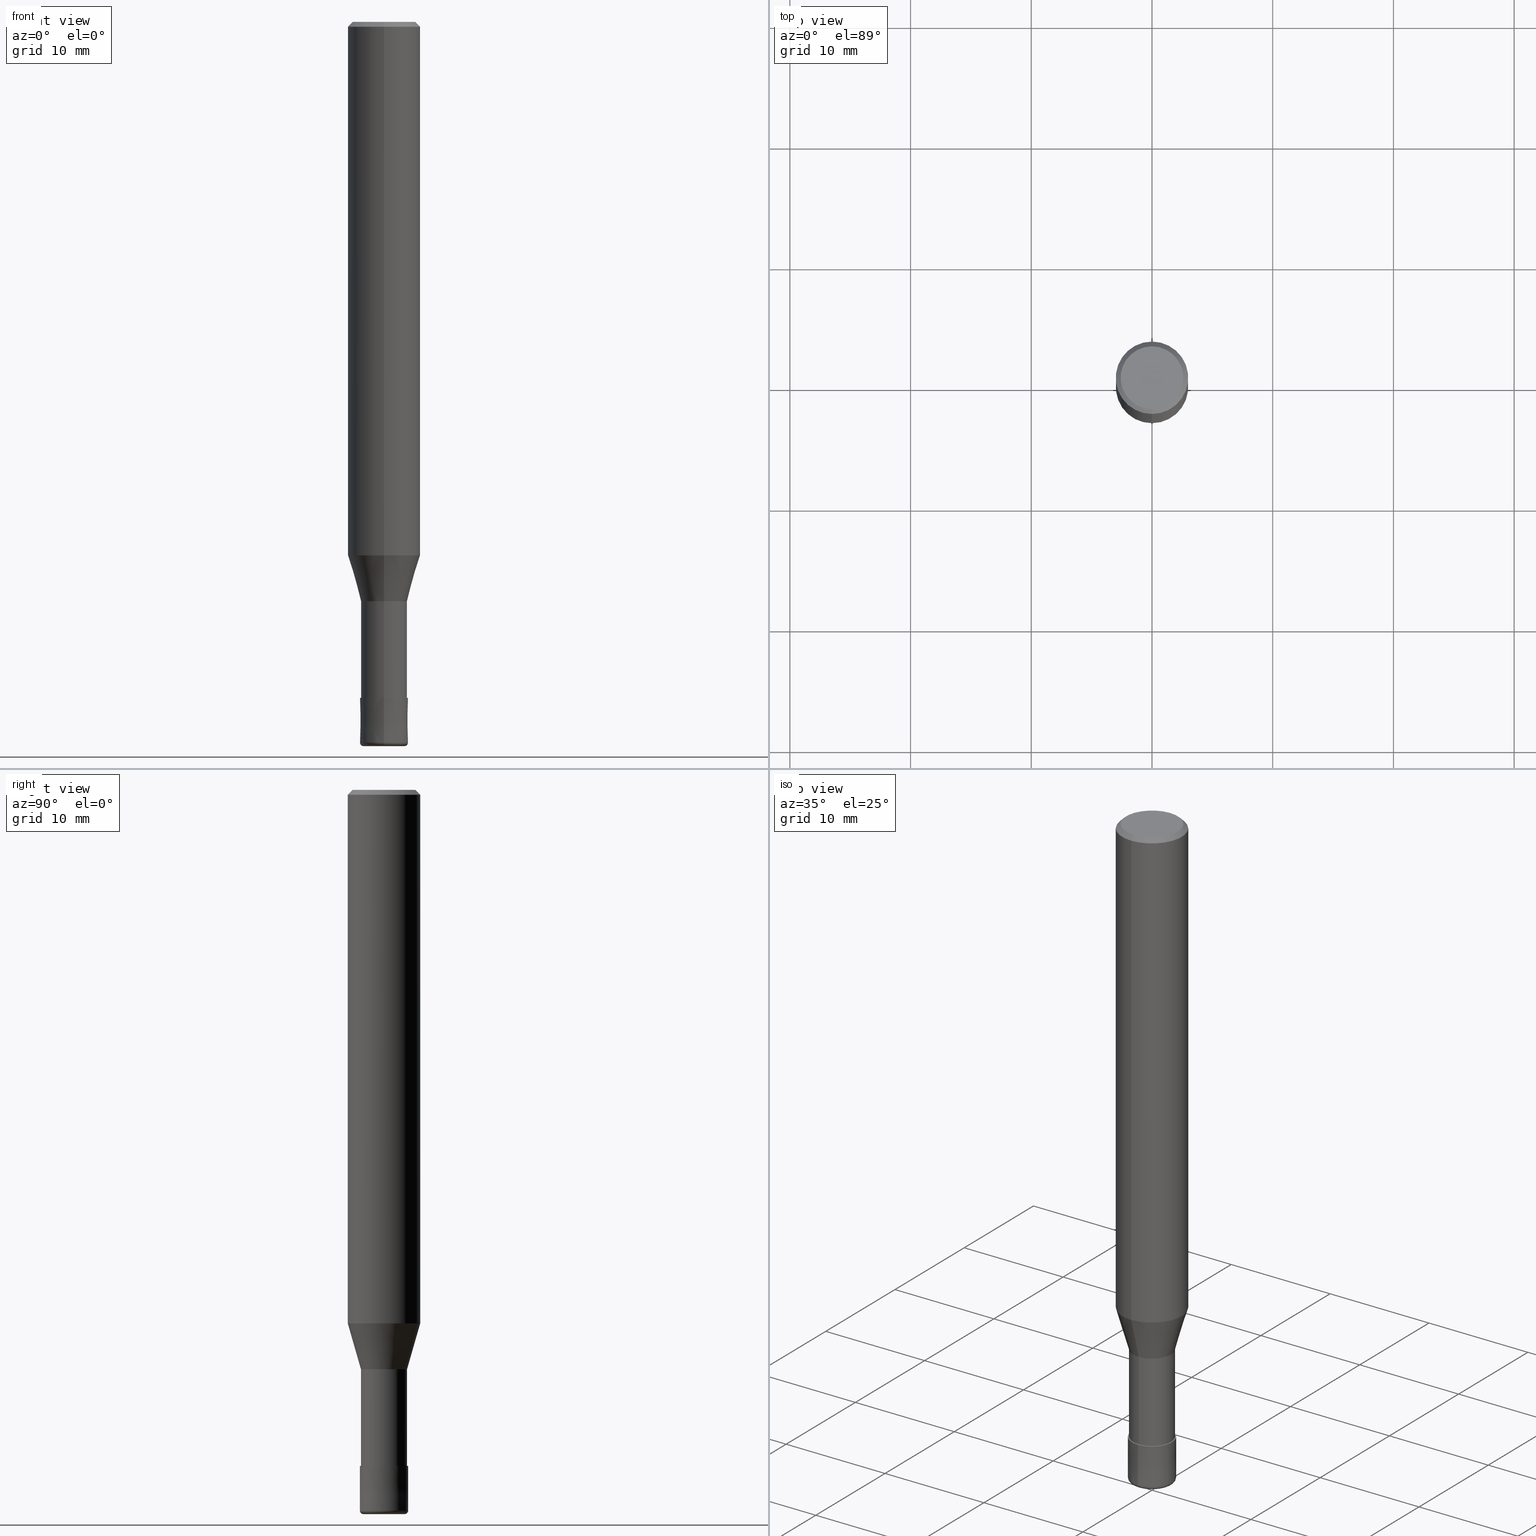
[diagram: canonical four-view strip — front | top / right | iso, engineering-drawing reading convention]
A machine part, canonical four-view strip (front | top / right | iso — engineering-drawing reading convention). The complete STEP part file that produces these views, byte-faithful:
ISO-10303-21;
HEADER;
FILE_DESCRIPTION(('no description'),'unknown implementation level');
FILE_NAME('CRRS4040-03-12-Huellk.stp','  ',('CIMSOURCE GmbH'),('CADClick - KiM GmbH - www.kimweb.de'),'unknown preprocess','ACIS','unknown authorization');
FILE_SCHEMA(('automotive_design'));
ENDSEC;
DATA;
#1=MECHANICAL_DESIGN_GEOMETRIC_PRESENTATION_REPRESENTATION(' ',(#14,#15,#16,#17,#18,#19,#20,#21,#22,#23,#24,#25,#26,#27,#28,#29,#30,#31,#32,#33,#34,#35,#36,#37,#38,#39,#40,#41,#42,#43,#44,#45,#46,#47,#48,#49,#50,#51,#52,#53,#54,#55,#56,#57,#58,#59,#60,#61,#62,#63,#64,#65,#66,#67,#68,#69,#70,#71,#72,#73,#74,#75,#76,#77,#78,#79,#80),#10);
#2=PRODUCT_DEFINITION_CONTEXT('',#81,'design');
#3=APPLICATION_PROTOCOL_DEFINITION('INTERNATIONAL STANDARD','automotive_design',1994,#81);
#4=PRODUCT_CATEGORY_RELATIONSHIP('NONE','NONE',#82,#83);
#5=SHAPE_DEFINITION_REPRESENTATION(#84,#85);
#6=PRODUCT_DEFINITION_CONTEXT('',#86,'design');
#7=APPLICATION_PROTOCOL_DEFINITION('INTERNATIONAL STANDARD','automotive_design',1994,#86);
#8=PRODUCT_CATEGORY_RELATIONSHIP('NONE','NONE',#87,#88);
#9=SHAPE_DEFINITION_REPRESENTATION(#89,#90);
#10= (GEOMETRIC_REPRESENTATION_CONTEXT(3)GLOBAL_UNCERTAINTY_ASSIGNED_CONTEXT((#93))GLOBAL_UNIT_ASSIGNED_CONTEXT((#95,#96,#97))REPRESENTATION_CONTEXT('NONE','WORKSPACE'));
#14=STYLED_ITEM('',(#99),#100);
#15=STYLED_ITEM('',(#101),#102);
#16=STYLED_ITEM('',(#103),#104);
#17=STYLED_ITEM('',(#105),#106);
#18=STYLED_ITEM('',(#107),#108);
#19=STYLED_ITEM('',(#109),#110);
#20=STYLED_ITEM('',(#111),#112);
#21=STYLED_ITEM('',(#113),#114);
#22=STYLED_ITEM('',(#115),#116);
#23=STYLED_ITEM('',(#117),#118);
#24=STYLED_ITEM('',(#119),#120);
#25=STYLED_ITEM('',(#121),#122);
#26=STYLED_ITEM('',(#123),#124);
#27=STYLED_ITEM('',(#125),#126);
#28=STYLED_ITEM('',(#127),#128);
#29=STYLED_ITEM('',(#129),#130);
#30=STYLED_ITEM('',(#131),#132);
#31=STYLED_ITEM('',(#133),#134);
#32=STYLED_ITEM('',(#135),#136);
#33=STYLED_ITEM('',(#137),#138);
#34=STYLED_ITEM('',(#139),#140);
#35=STYLED_ITEM('',(#141),#142);
#36=STYLED_ITEM('',(#143),#144);
#37=STYLED_ITEM('',(#145),#146);
#38=STYLED_ITEM('',(#147),#148);
#39=STYLED_ITEM('',(#149),#150);
#40=STYLED_ITEM('',(#151),#152);
#41=STYLED_ITEM('',(#153),#154);
#42=STYLED_ITEM('',(#155),#156);
#43=STYLED_ITEM('',(#157),#158);
#44=STYLED_ITEM('',(#159),#160);
#45=STYLED_ITEM('',(#161),#162);
#46=STYLED_ITEM('',(#163),#164);
#47=STYLED_ITEM('',(#165),#166);
#48=STYLED_ITEM('',(#167),#168);
#49=STYLED_ITEM('',(#169),#170);
#50=STYLED_ITEM('',(#171),#172);
#51=STYLED_ITEM('',(#173),#174);
#52=STYLED_ITEM('',(#175),#176);
#53=STYLED_ITEM('',(#177),#178);
#54=STYLED_ITEM('',(#179),#180);
#55=STYLED_ITEM('',(#181),#182);
#56=STYLED_ITEM('',(#183),#184);
#57=STYLED_ITEM('',(#185),#186);
#58=STYLED_ITEM('',(#187),#188);
#59=STYLED_ITEM('',(#189),#190);
#60=STYLED_ITEM('',(#191),#192);
#61=STYLED_ITEM('',(#193),#194);
#62=STYLED_ITEM('',(#195),#196);
#63=STYLED_ITEM('',(#197),#198);
#64=STYLED_ITEM('',(#199),#200);
#65=STYLED_ITEM('',(#201),#202);
#66=STYLED_ITEM('',(#203),#204);
#67=STYLED_ITEM('',(#205),#206);
#68=STYLED_ITEM('',(#207),#208);
#69=STYLED_ITEM('',(#209),#210);
#70=STYLED_ITEM('',(#211),#212);
#71=STYLED_ITEM('',(#213),#214);
#72=STYLED_ITEM('',(#215),#216);
#73=STYLED_ITEM('',(#217),#218);
#74=STYLED_ITEM('',(#219),#220);
#75=STYLED_ITEM('',(#221),#222);
#76=STYLED_ITEM('',(#223),#224);
#77=STYLED_ITEM('',(#225),#226);
#78=STYLED_ITEM('',(#227),#228);
#79=STYLED_ITEM('',(#229),#230);
#80=STYLED_ITEM('',(#231),#232);
#81=APPLICATION_CONTEXT(' ');
#82=PRODUCT_CATEGORY('part','NONE');
#83=PRODUCT_RELATED_PRODUCT_CATEGORY('detail',' ',(#233));
#84=PRODUCT_DEFINITION_SHAPE('NONE','NONE',#234);
#85=ADVANCED_BREP_SHAPE_REPRESENTATION('1',(#196,#235),#10);
#86=APPLICATION_CONTEXT(' ');
#87=PRODUCT_CATEGORY('part','NONE');
#88=PRODUCT_RELATED_PRODUCT_CATEGORY('detail',' ',(#236));
#89=PRODUCT_DEFINITION_SHAPE('NONE','NONE',#237);
#90=ADVANCED_BREP_SHAPE_REPRESENTATION('2',(#198,#238),#10);
#93=UNCERTAINTY_MEASURE_WITH_UNIT(LENGTH_MEASURE(1.0E-006),#95,'','');
#95= (CONVERSION_BASED_UNIT('MILLIMETRE',#241)LENGTH_UNIT()NAMED_UNIT(#244));
#96= (NAMED_UNIT(#246)PLANE_ANGLE_UNIT()SI_UNIT($,.RADIAN.));
#97= (NAMED_UNIT(#246)SOLID_ANGLE_UNIT()SI_UNIT($,.STERADIAN.));
#99=PRESENTATION_STYLE_ASSIGNMENT((#252));
#100=EDGE_CURVE('',#130,#188,#253,.T.);
#101=PRESENTATION_STYLE_ASSIGNMENT((#254));
#102=VERTEX_POINT('',#255);
#103=PRESENTATION_STYLE_ASSIGNMENT((#256));
#104=VERTEX_POINT('',#257);
#105=PRESENTATION_STYLE_ASSIGNMENT((#258));
#106=EDGE_CURVE('',#204,#102,#259,.T.);
#107=PRESENTATION_STYLE_ASSIGNMENT((#260));
#108=ADVANCED_FACE('',(#261),#262,.T.);
#109=PRESENTATION_STYLE_ASSIGNMENT((#263));
#110=ADVANCED_FACE('',(#264),#265,.T.);
#111=PRESENTATION_STYLE_ASSIGNMENT((#266));
#112=ADVANCED_FACE('',(#267),#268,.T.);
#113=PRESENTATION_STYLE_ASSIGNMENT((#269));
#114=ADVANCED_FACE('',(#270),#271,.T.);
#115=PRESENTATION_STYLE_ASSIGNMENT((#272));
#116=ADVANCED_FACE('',(#273),#274,.T.);
#117=PRESENTATION_STYLE_ASSIGNMENT((#275));
#118=EDGE_CURVE('',#222,#132,#276,.T.);
#119=PRESENTATION_STYLE_ASSIGNMENT((#277));
#120=VERTEX_POINT('',#278);
#121=PRESENTATION_STYLE_ASSIGNMENT((#279));
#122=VERTEX_POINT('',#280);
#123=PRESENTATION_STYLE_ASSIGNMENT((#281));
#124=EDGE_CURVE('',#120,#212,#282,.T.);
#125=PRESENTATION_STYLE_ASSIGNMENT((#283));
#126=ADVANCED_FACE('',(#284),#285,.T.);
#127=PRESENTATION_STYLE_ASSIGNMENT((#286));
#128=EDGE_CURVE('',#212,#204,#287,.T.);
#129=PRESENTATION_STYLE_ASSIGNMENT((#288));
#130=VERTEX_POINT('',#289);
#131=PRESENTATION_STYLE_ASSIGNMENT((#290));
#132=VERTEX_POINT('',#291);
#133=PRESENTATION_STYLE_ASSIGNMENT((#292));
#134=EDGE_CURVE('',#212,#222,#293,.T.);
#135=PRESENTATION_STYLE_ASSIGNMENT((#294));
#136=VERTEX_POINT('',#295);
#137=PRESENTATION_STYLE_ASSIGNMENT((#296));
#138=EDGE_CURVE('',#170,#142,#297,.T.);
#139=PRESENTATION_STYLE_ASSIGNMENT((#298));
#140=EDGE_CURVE('',#148,#170,#299,.T.);
#141=PRESENTATION_STYLE_ASSIGNMENT((#300));
#142=VERTEX_POINT('',#301);
#143=PRESENTATION_STYLE_ASSIGNMENT((#302));
#144=EDGE_CURVE('',#122,#104,#303,.T.);
#145=PRESENTATION_STYLE_ASSIGNMENT((#304));
#146=EDGE_CURVE('',#142,#160,#305,.T.);
#147=PRESENTATION_STYLE_ASSIGNMENT((#306));
#148=VERTEX_POINT('',#307);
#149=PRESENTATION_STYLE_ASSIGNMENT((#308));
#150=EDGE_CURVE('',#222,#212,#309,.T.);
#151=PRESENTATION_STYLE_ASSIGNMENT((#310));
#152=EDGE_CURVE('',#174,#194,#311,.T.);
#153=PRESENTATION_STYLE_ASSIGNMENT((#312));
#154=ADVANCED_FACE('',(#313),#314,.T.);
#155=PRESENTATION_STYLE_ASSIGNMENT((#315));
#156=ADVANCED_FACE('',(#316,#317),#318,.T.);
#157=PRESENTATION_STYLE_ASSIGNMENT((#319));
#158=EDGE_CURVE('',#102,#204,#320,.T.);
#159=PRESENTATION_STYLE_ASSIGNMENT((#321));
#160=VERTEX_POINT('',#322);
#161=PRESENTATION_STYLE_ASSIGNMENT((#323));
#162=ADVANCED_FACE('',(#324),#325,.T.);
#163=PRESENTATION_STYLE_ASSIGNMENT((#326));
#164=EDGE_CURVE('',#120,#132,#327,.T.);
#165=PRESENTATION_STYLE_ASSIGNMENT((#328));
#166=EDGE_CURVE('',#170,#148,#329,.T.);
#167=PRESENTATION_STYLE_ASSIGNMENT((#330));
#168=EDGE_CURVE('',#188,#136,#331,.T.);
#169=PRESENTATION_STYLE_ASSIGNMENT((#332));
#170=VERTEX_POINT('',#333);
#171=PRESENTATION_STYLE_ASSIGNMENT((#334));
#172=ADVANCED_FACE('',(#335),#336,.T.);
#173=PRESENTATION_STYLE_ASSIGNMENT((#337));
#174=VERTEX_POINT('',#338);
#175=PRESENTATION_STYLE_ASSIGNMENT((#339));
#176=ADVANCED_FACE('',(#340),#341,.T.);
#177=PRESENTATION_STYLE_ASSIGNMENT((#342));
#178=EDGE_CURVE('',#188,#130,#343,.T.);
#179=PRESENTATION_STYLE_ASSIGNMENT((#344));
#180=ADVANCED_FACE('',(#345),#346,.T.);
#181=PRESENTATION_STYLE_ASSIGNMENT((#347));
#182=EDGE_CURVE('',#170,#174,#348,.T.);
#183=PRESENTATION_STYLE_ASSIGNMENT((#349));
#184=EDGE_CURVE('',#194,#148,#350,.T.);
#185=PRESENTATION_STYLE_ASSIGNMENT((#351));
#186=EDGE_CURVE('',#160,#148,#352,.T.);
#187=PRESENTATION_STYLE_ASSIGNMENT((#353));
#188=VERTEX_POINT('',#354);
#189=PRESENTATION_STYLE_ASSIGNMENT((#355));
#190=EDGE_CURVE('',#102,#222,#356,.T.);
#191=PRESENTATION_STYLE_ASSIGNMENT((#357));
#192=ADVANCED_FACE('',(#358),#359,.T.);
#193=PRESENTATION_STYLE_ASSIGNMENT((#360));
#194=VERTEX_POINT('',#361);
#195=PRESENTATION_STYLE_ASSIGNMENT((#362));
#196=MANIFOLD_SOLID_BREP('1',#363);
#197=PRESENTATION_STYLE_ASSIGNMENT((#364));
#198=MANIFOLD_SOLID_BREP('2',#365);
#199=PRESENTATION_STYLE_ASSIGNMENT((#366));
#200=EDGE_CURVE('',#104,#188,#367,.T.);
#201=PRESENTATION_STYLE_ASSIGNMENT((#368));
#202=EDGE_CURVE('',#220,#136,#369,.T.);
#203=PRESENTATION_STYLE_ASSIGNMENT((#370));
#204=VERTEX_POINT('',#371);
#205=PRESENTATION_STYLE_ASSIGNMENT((#372));
#206=EDGE_CURVE('',#136,#220,#373,.T.);
#207=PRESENTATION_STYLE_ASSIGNMENT((#374));
#208=EDGE_CURVE('',#132,#120,#375,.T.);
#209=PRESENTATION_STYLE_ASSIGNMENT((#376));
#210=EDGE_CURVE('',#130,#122,#377,.T.);
#211=PRESENTATION_STYLE_ASSIGNMENT((#378));
#212=VERTEX_POINT('',#379);
#213=PRESENTATION_STYLE_ASSIGNMENT((#380));
#214=EDGE_CURVE('',#220,#130,#381,.T.);
#215=PRESENTATION_STYLE_ASSIGNMENT((#382));
#216=ADVANCED_FACE('',(#383),#384,.T.);
#217=PRESENTATION_STYLE_ASSIGNMENT((#385));
#218=ADVANCED_FACE('',(#386),#387,.T.);
#219=PRESENTATION_STYLE_ASSIGNMENT((#388));
#220=VERTEX_POINT('',#389);
#221=PRESENTATION_STYLE_ASSIGNMENT((#390));
#222=VERTEX_POINT('',#391);
#223=PRESENTATION_STYLE_ASSIGNMENT((#392));
#224=ADVANCED_FACE('',(#393),#394,.T.);
#225=PRESENTATION_STYLE_ASSIGNMENT((#395));
#226=ADVANCED_FACE('',(#396),#397,.T.);
#227=PRESENTATION_STYLE_ASSIGNMENT((#398));
#228=EDGE_CURVE('',#160,#142,#399,.T.);
#229=PRESENTATION_STYLE_ASSIGNMENT((#400));
#230=EDGE_CURVE('',#194,#174,#401,.T.);
#231=PRESENTATION_STYLE_ASSIGNMENT((#402));
#232=EDGE_CURVE('',#104,#122,#403,.T.);
#233=PRODUCT('1','1','PART-1-DESC',(#404));
#234=PRODUCT_DEFINITION('NONE','NONE',#405,#2);
#235=AXIS2_PLACEMENT_3D('',#406,#407,#408);
#236=PRODUCT('2','2','PART-2-DESC',(#409));
#237=PRODUCT_DEFINITION('NONE','NONE',#410,#6);
#238=AXIS2_PLACEMENT_3D('',#411,#412,#413);
#241=LENGTH_MEASURE_WITH_UNIT(LENGTH_MEASURE(1.0),#414);
#244=DIMENSIONAL_EXPONENTS(1.0,0.0,0.0,0.0,0.0,0.0,0.0);
#246=DIMENSIONAL_EXPONENTS(0.0,0.0,0.0,0.0,0.0,0.0,0.0);
#252=CURVE_STYLE('',#415,POSITIVE_LENGTH_MEASURE(1.0E-006),#416);
#253=CIRCLE('',#417,3.0);
#254=POINT_STYLE(' ',#418,POSITIVE_LENGTH_MEASURE(1.0E-006),#419);
#255=CARTESIAN_POINT('',(0.0,2.99995,-44.199));
#256=POINT_STYLE(' ',#420,POSITIVE_LENGTH_MEASURE(1.0E-006),#421);
#257=CARTESIAN_POINT('',(3.67381906146713E-016,-3.0,-44.199));
#258=CURVE_STYLE('',#422,POSITIVE_LENGTH_MEASURE(1.0E-006),#423);
#259=CIRCLE('',#424,2.99995);
#260=SURFACE_STYLE_USAGE(.BOTH.,#425);
#261=FACE_OUTER_BOUND('',#426,.T.);
#262=PLANE('',#427);
#263=SURFACE_STYLE_USAGE(.BOTH.,#428);
#264=FACE_OUTER_BOUND('',#429,.T.);
#265=CYLINDRICAL_SURFACE('',#430,3.0);
#266=SURFACE_STYLE_USAGE(.BOTH.,#431);
#267=FACE_OUTER_BOUND('',#432,.T.);
#268=CONICAL_SURFACE('',#433,2.45495,0.279272319969089);
#269=SURFACE_STYLE_USAGE(.BOTH.,#434);
#270=FACE_OUTER_BOUND('',#435,.T.);
#271=CONICAL_SURFACE('',#436,2.45495,0.279272319969089);
#272=SURFACE_STYLE_USAGE(.BOTH.,#437);
#273=FACE_OUTER_BOUND('',#438,.T.);
#274=CONICAL_SURFACE('',#439,1.99995,2.70270270204433E-005);
#275=CURVE_STYLE('',#440,POSITIVE_LENGTH_MEASURE(1.0E-006),#441);
#276=LINE('',#442,#443);
#277=POINT_STYLE(' ',#444,POSITIVE_LENGTH_MEASURE(1.0E-006),#445);
#278=CARTESIAN_POINT('',(2.33893690548305E-016,-1.90995,-56.0));
#279=POINT_STYLE(' ',#446,POSITIVE_LENGTH_MEASURE(1.0E-006),#447);
#280=CARTESIAN_POINT('',(0.0,3.0,-44.199));
#281=CURVE_STYLE('',#448,POSITIVE_LENGTH_MEASURE(1.0E-006),#449);
#282=LINE('',#450,#451);
#283=SURFACE_STYLE_USAGE(.BOTH.,#452);
#284=FACE_OUTER_BOUND('',#453,.T.);
#285=PLANE('',#454);
#286=CURVE_STYLE('',#455,POSITIVE_LENGTH_MEASURE(1.0E-006),#456);
#287=LINE('',#457,#458);
#288=POINT_STYLE(' ',#459,POSITIVE_LENGTH_MEASURE(1.0E-006),#460);
#289=CARTESIAN_POINT('',(0.0,3.0,-0.399999999999999));
#290=POINT_STYLE(' ',#461,POSITIVE_LENGTH_MEASURE(1.0E-006),#462);
#291=CARTESIAN_POINT('',(0.0,1.90995,-56.0));
#292=CURVE_STYLE('',#463,POSITIVE_LENGTH_MEASURE(1.0E-006),#464);
#293=CIRCLE('',#465,1.90995);
#294=POINT_STYLE(' ',#466,POSITIVE_LENGTH_MEASURE(1.0E-006),#467);
#295=CARTESIAN_POINT('',(3.18397651993818E-016,-2.6,0.0));
#296=CURVE_STYLE('',#468,POSITIVE_LENGTH_MEASURE(1.0E-006),#469);
#297=LINE('',#470,#471);
#298=CURVE_STYLE('',#472,POSITIVE_LENGTH_MEASURE(1.0E-006),#473);
#299=CIRCLE('',#474,2.0);
#300=POINT_STYLE(' ',#475,POSITIVE_LENGTH_MEASURE(1.0E-006),#476);
#301=CARTESIAN_POINT('',(2.44909024700937E-016,-1.9999,-56.0));
#302=CURVE_STYLE('',#477,POSITIVE_LENGTH_MEASURE(1.0E-006),#478);
#303=CIRCLE('',#479,3.0);
#304=CURVE_STYLE('',#480,POSITIVE_LENGTH_MEASURE(1.0E-006),#481);
#305=CIRCLE('',#482,1.9999);
#306=POINT_STYLE(' ',#483,POSITIVE_LENGTH_MEASURE(1.0E-006),#484);
#307=CARTESIAN_POINT('',(0.0,2.0,-59.7));
#308=CURVE_STYLE('',#485,POSITIVE_LENGTH_MEASURE(1.0E-006),#486);
#309=CIRCLE('',#487,1.90995);
#310=CURVE_STYLE('',#488,POSITIVE_LENGTH_MEASURE(1.0E-006),#489);
#311=CIRCLE('',#490,1.7);
#312=SURFACE_STYLE_USAGE(.BOTH.,#491);
#313=FACE_OUTER_BOUND('',#492,.T.);
#314=CYLINDRICAL_SURFACE('',#493,1.90995);
#315=SURFACE_STYLE_USAGE(.BOTH.,#494);
#316=FACE_OUTER_BOUND('',#495,.T.);
#317=FACE_BOUND('',#496,.T.);
#318=PLANE('',#497);
#319=CURVE_STYLE('',#498,POSITIVE_LENGTH_MEASURE(1.0E-006),#499);
#320=CIRCLE('',#500,2.99995);
#321=POINT_STYLE(' ',#501,POSITIVE_LENGTH_MEASURE(1.0E-006),#502);
#322=CARTESIAN_POINT('',(0.0,1.9999,-56.0));
#323=SURFACE_STYLE_USAGE(.BOTH.,#503);
#324=FACE_OUTER_BOUND('',#504,.T.);
#325=PLANE('',#505);
#326=CURVE_STYLE('',#506,POSITIVE_LENGTH_MEASURE(1.0E-006),#507);
#327=CIRCLE('',#508,1.90995);
#328=CURVE_STYLE('',#509,POSITIVE_LENGTH_MEASURE(1.0E-006),#510);
#329=CIRCLE('',#511,2.0);
#330=CURVE_STYLE('',#512,POSITIVE_LENGTH_MEASURE(1.0E-006),#513);
#331=LINE('',#514,#515);
#332=POINT_STYLE(' ',#516,POSITIVE_LENGTH_MEASURE(1.0E-006),#517);
#333=CARTESIAN_POINT('',(2.44921270764475E-016,-2.0,-59.7));
#334=SURFACE_STYLE_USAGE(.BOTH.,#518);
#335=FACE_OUTER_BOUND('',#519,.T.);
#336=CONICAL_SURFACE('',#520,1.99995,2.70270270204433E-005);
#337=POINT_STYLE(' ',#521,POSITIVE_LENGTH_MEASURE(1.0E-006),#522);
#338=CARTESIAN_POINT('',(2.08183080149804E-016,-1.7,-60.0));
#339=SURFACE_STYLE_USAGE(.BOTH.,#523);
#340=FACE_OUTER_BOUND('',#524,.T.);
#341=PLANE('',#525);
#342=CURVE_STYLE('',#526,POSITIVE_LENGTH_MEASURE(1.0E-006),#527);
#343=CIRCLE('',#528,3.0);
#344=SURFACE_STYLE_USAGE(.BOTH.,#529);
#345=FACE_OUTER_BOUND('',#530,.T.);
#346=CYLINDRICAL_SURFACE('',#531,3.0);
#347=CURVE_STYLE('',#532,POSITIVE_LENGTH_MEASURE(1.0E-006),#533);
#348=CIRCLE('',#534,0.300000000000002);
#349=CURVE_STYLE('',#535,POSITIVE_LENGTH_MEASURE(1.0E-006),#536);
#350=CIRCLE('',#537,0.300000000000002);
#351=CURVE_STYLE('',#538,POSITIVE_LENGTH_MEASURE(1.0E-006),#539);
#352=LINE('',#540,#541);
#353=POINT_STYLE(' ',#542,POSITIVE_LENGTH_MEASURE(1.0E-006),#543);
#354=CARTESIAN_POINT('',(3.67381906146713E-016,-3.0,-0.399999999999999));
#355=CURVE_STYLE('',#544,POSITIVE_LENGTH_MEASURE(1.0E-006),#545);
#356=LINE('',#546,#547);
#357=SURFACE_STYLE_USAGE(.BOTH.,#548);
#358=FACE_OUTER_BOUND('',#549,.T.);
#359=CONICAL_SURFACE('',#550,2.8,0.78539816339745);
#360=POINT_STYLE(' ',#551,POSITIVE_LENGTH_MEASURE(1.0E-006),#552);
#361=CARTESIAN_POINT('',(0.0,1.7,-60.0));
#362=SURFACE_STYLE_USAGE(.BOTH.,#553);
#363=CLOSED_SHELL('',(#154,#114,#180,#216,#156,#176,#192,#110,#112,#226,#162));
#364=SURFACE_STYLE_USAGE(.BOTH.,#554);
#365=CLOSED_SHELL('',(#224,#116,#126,#172,#218,#108));
#366=CURVE_STYLE('',#555,POSITIVE_LENGTH_MEASURE(1.0E-006),#556);
#367=LINE('',#557,#558);
#368=CURVE_STYLE('',#559,POSITIVE_LENGTH_MEASURE(1.0E-006),#560);
#369=CIRCLE('',#561,2.6);
#370=POINT_STYLE(' ',#562,POSITIVE_LENGTH_MEASURE(1.0E-006),#563);
#371=CARTESIAN_POINT('',(3.67375783114944E-016,-2.99995,-44.199));
#372=CURVE_STYLE('',#564,POSITIVE_LENGTH_MEASURE(1.0E-006),#565);
#373=CIRCLE('',#566,2.6);
#374=CURVE_STYLE('',#567,POSITIVE_LENGTH_MEASURE(1.0E-006),#568);
#375=CIRCLE('',#569,1.90995);
#376=CURVE_STYLE('',#570,POSITIVE_LENGTH_MEASURE(1.0E-006),#571);
#377=LINE('',#572,#573);
#378=POINT_STYLE(' ',#574,POSITIVE_LENGTH_MEASURE(1.0E-006),#575);
#379=CARTESIAN_POINT('',(2.33893690548305E-016,-1.90995,-48.0));
#380=CURVE_STYLE('',#576,POSITIVE_LENGTH_MEASURE(1.0E-006),#577);
#381=LINE('',#578,#579);
#382=SURFACE_STYLE_USAGE(.BOTH.,#580);
#383=FACE_OUTER_BOUND('',#581,.T.);
#384=CONICAL_SURFACE('',#582,2.8,0.78539816339745);
#385=SURFACE_STYLE_USAGE(.BOTH.,#583);
#386=FACE_OUTER_BOUND('',#584,.T.);
#387=TOROIDAL_SURFACE('',#585,1.7,0.300000000000002);
#388=POINT_STYLE(' ',#586,POSITIVE_LENGTH_MEASURE(1.0E-006),#587);
#389=CARTESIAN_POINT('',(0.0,2.6,0.0));
#390=POINT_STYLE(' ',#588,POSITIVE_LENGTH_MEASURE(1.0E-006),#589);
#391=CARTESIAN_POINT('',(0.0,1.90995,-48.0));
#392=SURFACE_STYLE_USAGE(.BOTH.,#590);
#393=FACE_OUTER_BOUND('',#591,.T.);
#394=TOROIDAL_SURFACE('',#592,1.7,0.300000000000002);
#395=SURFACE_STYLE_USAGE(.BOTH.,#593);
#396=FACE_OUTER_BOUND('',#594,.T.);
#397=CYLINDRICAL_SURFACE('',#595,1.90995);
#398=CURVE_STYLE('',#596,POSITIVE_LENGTH_MEASURE(1.0E-006),#597);
#399=CIRCLE('',#598,1.9999);
#400=CURVE_STYLE('',#599,POSITIVE_LENGTH_MEASURE(1.0E-006),#600);
#401=CIRCLE('',#601,1.7);
#402=CURVE_STYLE('',#602,POSITIVE_LENGTH_MEASURE(1.0E-006),#603);
#403=CIRCLE('',#604,3.0);
#404=PRODUCT_CONTEXT('',#81,'mechanical');
#405=PRODUCT_DEFINITION_FORMATION_WITH_SPECIFIED_SOURCE(' ','NONE',#233,.NOT_KNOWN.);
#406=CARTESIAN_POINT('',(0.0,0.0,0.0));
#407=DIRECTION('',(0.0,0.0,1.0));
#408=DIRECTION('',(1.0,0.0,0.0));
#409=PRODUCT_CONTEXT('',#86,'mechanical');
#410=PRODUCT_DEFINITION_FORMATION_WITH_SPECIFIED_SOURCE(' ','NONE',#236,.NOT_KNOWN.);
#411=CARTESIAN_POINT('',(0.0,0.0,0.0));
#412=DIRECTION('',(0.0,0.0,1.0));
#413=DIRECTION('',(1.0,0.0,0.0));
#414= (NAMED_UNIT(#244)LENGTH_UNIT()SI_UNIT(.MILLI.,.METRE.));
#415=DRAUGHTING_PRE_DEFINED_CURVE_FONT('continuous');
#416=COLOUR_RGB('',0.498039215803146,0.498039215803146,0.498039215803146);
#417=AXIS2_PLACEMENT_3D('',#606,#607,#608);
#418=PRE_DEFINED_MARKER('');
#419=COLOUR_RGB('',0.498039215803146,0.498039215803146,0.498039215803146);
#420=PRE_DEFINED_MARKER('');
#421=COLOUR_RGB('',0.498039215803146,0.498039215803146,0.498039215803146);
#422=DRAUGHTING_PRE_DEFINED_CURVE_FONT('continuous');
#423=COLOUR_RGB('',0.498039215803146,0.498039215803146,0.498039215803146);
#424=AXIS2_PLACEMENT_3D('',#609,#610,#611);
#425=SURFACE_SIDE_STYLE('',(#612));
#426=EDGE_LOOP('',(#613,#614));
#427=AXIS2_PLACEMENT_3D('',#615,#616,#617);
#428=SURFACE_SIDE_STYLE('',(#618));
#429=EDGE_LOOP('',(#619,#620,#621,#622));
#430=AXIS2_PLACEMENT_3D('',#623,#624,#625);
#431=SURFACE_SIDE_STYLE('',(#626));
#432=EDGE_LOOP('',(#627,#628,#629,#630));
#433=AXIS2_PLACEMENT_3D('',#631,#632,#633);
#434=SURFACE_SIDE_STYLE('',(#634));
#435=EDGE_LOOP('',(#635,#636,#637,#638));
#436=AXIS2_PLACEMENT_3D('',#639,#640,#641);
#437=SURFACE_SIDE_STYLE('',(#642));
#438=EDGE_LOOP('',(#643,#644,#645,#646));
#439=AXIS2_PLACEMENT_3D('',#647,#648,#649);
#440=DRAUGHTING_PRE_DEFINED_CURVE_FONT('continuous');
#441=COLOUR_RGB('',0.498039215803146,0.498039215803146,0.498039215803146);
#442=CARTESIAN_POINT('',(-2.33893690548305E-016,1.90995,-52.0));
#443=VECTOR('',#650,1.0);
#444=PRE_DEFINED_MARKER('');
#445=COLOUR_RGB('',0.498039215803146,0.498039215803146,0.498039215803146);
#446=PRE_DEFINED_MARKER('');
#447=COLOUR_RGB('',0.498039215803146,0.498039215803146,0.498039215803146);
#448=DRAUGHTING_PRE_DEFINED_CURVE_FONT('continuous');
#449=COLOUR_RGB('',0.498039215803146,0.498039215803146,0.498039215803146);
#450=CARTESIAN_POINT('',(2.33893690548305E-016,-1.90995,-52.0));
#451=VECTOR('',#651,1.0);
#452=SURFACE_SIDE_STYLE('',(#652));
#453=EDGE_LOOP('',(#653,#654));
#454=AXIS2_PLACEMENT_3D('',#655,#656,#657);
#455=DRAUGHTING_PRE_DEFINED_CURVE_FONT('continuous');
#456=COLOUR_RGB('',0.498039215803146,0.498039215803146,0.498039215803146);
#457=CARTESIAN_POINT('',(3.00634736831625E-016,-2.45495,-46.0995));
#458=VECTOR('',#658,1.0);
#459=PRE_DEFINED_MARKER('');
#460=COLOUR_RGB('',0.498039215803146,0.498039215803146,0.498039215803146);
#461=PRE_DEFINED_MARKER('');
#462=COLOUR_RGB('',0.498039215803146,0.498039215803146,0.498039215803146);
#463=DRAUGHTING_PRE_DEFINED_CURVE_FONT('continuous');
#464=COLOUR_RGB('',0.498039215803146,0.498039215803146,0.498039215803146);
#465=AXIS2_PLACEMENT_3D('',#659,#660,#661);
#466=PRE_DEFINED_MARKER('');
#467=COLOUR_RGB('',0.498039215803146,0.498039215803146,0.498039215803146);
#468=DRAUGHTING_PRE_DEFINED_CURVE_FONT('continuous');
#469=COLOUR_RGB('',0.800000011920929,0.800000011920929,0.800000011920929);
#470=CARTESIAN_POINT('',(2.44915147732706E-016,-1.99995,-57.85));
#471=VECTOR('',#662,1.0);
#472=DRAUGHTING_PRE_DEFINED_CURVE_FONT('continuous');
#473=COLOUR_RGB('',0.800000011920929,0.800000011920929,0.800000011920929);
#474=AXIS2_PLACEMENT_3D('',#663,#664,#665);
#475=PRE_DEFINED_MARKER('');
#476=COLOUR_RGB('',0.800000011920929,0.800000011920929,0.800000011920929);
#477=DRAUGHTING_PRE_DEFINED_CURVE_FONT('continuous');
#478=COLOUR_RGB('',0.498039215803146,0.498039215803146,0.498039215803146);
#479=AXIS2_PLACEMENT_3D('',#666,#667,#668);
#480=DRAUGHTING_PRE_DEFINED_CURVE_FONT('continuous');
#481=COLOUR_RGB('',0.800000011920929,0.800000011920929,0.800000011920929);
#482=AXIS2_PLACEMENT_3D('',#669,#670,#671);
#483=PRE_DEFINED_MARKER('');
#484=COLOUR_RGB('',0.800000011920929,0.800000011920929,0.800000011920929);
#485=DRAUGHTING_PRE_DEFINED_CURVE_FONT('continuous');
#486=COLOUR_RGB('',0.498039215803146,0.498039215803146,0.498039215803146);
#487=AXIS2_PLACEMENT_3D('',#672,#673,#674);
#488=DRAUGHTING_PRE_DEFINED_CURVE_FONT('continuous');
#489=COLOUR_RGB('',0.800000011920929,0.800000011920929,0.800000011920929);
#490=AXIS2_PLACEMENT_3D('',#675,#676,#677);
#491=SURFACE_SIDE_STYLE('',(#678));
#492=EDGE_LOOP('',(#679,#680,#681,#682));
#493=AXIS2_PLACEMENT_3D('',#683,#684,#685);
#494=SURFACE_SIDE_STYLE('',(#686));
#495=EDGE_LOOP('',(#687,#688));
#496=EDGE_LOOP('',(#689,#690));
#497=AXIS2_PLACEMENT_3D('',#691,#692,#693);
#498=DRAUGHTING_PRE_DEFINED_CURVE_FONT('continuous');
#499=COLOUR_RGB('',0.498039215803146,0.498039215803146,0.498039215803146);
#500=AXIS2_PLACEMENT_3D('',#694,#695,#696);
#501=PRE_DEFINED_MARKER('');
#502=COLOUR_RGB('',0.800000011920929,0.800000011920929,0.800000011920929);
#503=SURFACE_SIDE_STYLE('',(#697));
#504=EDGE_LOOP('',(#698,#699));
#505=AXIS2_PLACEMENT_3D('',#700,#701,#702);
#506=DRAUGHTING_PRE_DEFINED_CURVE_FONT('continuous');
#507=COLOUR_RGB('',0.498039215803146,0.498039215803146,0.498039215803146);
#508=AXIS2_PLACEMENT_3D('',#703,#704,#705);
#509=DRAUGHTING_PRE_DEFINED_CURVE_FONT('continuous');
#510=COLOUR_RGB('',0.800000011920929,0.800000011920929,0.800000011920929);
#511=AXIS2_PLACEMENT_3D('',#706,#707,#708);
#512=DRAUGHTING_PRE_DEFINED_CURVE_FONT('continuous');
#513=COLOUR_RGB('',0.498039215803146,0.498039215803146,0.498039215803146);
#514=CARTESIAN_POINT('',(3.42889779070266E-016,-2.8,-0.200000000000003));
#515=VECTOR('',#709,1.0);
#516=PRE_DEFINED_MARKER('');
#517=COLOUR_RGB('',0.800000011920929,0.800000011920929,0.800000011920929);
#518=SURFACE_SIDE_STYLE('',(#710));
#519=EDGE_LOOP('',(#711,#712,#713,#714));
#520=AXIS2_PLACEMENT_3D('',#715,#716,#717);
#521=PRE_DEFINED_MARKER('');
#522=COLOUR_RGB('',0.800000011920929,0.800000011920929,0.800000011920929);
#523=SURFACE_SIDE_STYLE('',(#718));
#524=EDGE_LOOP('',(#719,#720));
#525=AXIS2_PLACEMENT_3D('',#721,#722,#723);
#526=DRAUGHTING_PRE_DEFINED_CURVE_FONT('continuous');
#527=COLOUR_RGB('',0.498039215803146,0.498039215803146,0.498039215803146);
#528=AXIS2_PLACEMENT_3D('',#724,#725,#726);
#529=SURFACE_SIDE_STYLE('',(#727));
#530=EDGE_LOOP('',(#728,#729,#730,#731));
#531=AXIS2_PLACEMENT_3D('',#732,#733,#734);
#532=DRAUGHTING_PRE_DEFINED_CURVE_FONT('continuous');
#533=COLOUR_RGB('',0.800000011920929,0.800000011920929,0.800000011920929);
#534=AXIS2_PLACEMENT_3D('',#735,#736,#737);
#535=DRAUGHTING_PRE_DEFINED_CURVE_FONT('continuous');
#536=COLOUR_RGB('',0.800000011920929,0.800000011920929,0.800000011920929);
#537=AXIS2_PLACEMENT_3D('',#738,#739,#740);
#538=DRAUGHTING_PRE_DEFINED_CURVE_FONT('continuous');
#539=COLOUR_RGB('',0.800000011920929,0.800000011920929,0.800000011920929);
#540=CARTESIAN_POINT('',(-2.44915147732706E-016,1.99995,-57.85));
#541=VECTOR('',#741,1.0);
#542=PRE_DEFINED_MARKER('');
#543=COLOUR_RGB('',0.498039215803146,0.498039215803146,0.498039215803146);
#544=DRAUGHTING_PRE_DEFINED_CURVE_FONT('continuous');
#545=COLOUR_RGB('',0.498039215803146,0.498039215803146,0.498039215803146);
#546=CARTESIAN_POINT('',(-3.00634736831625E-016,2.45495,-46.0995));
#547=VECTOR('',#742,1.0);
#548=SURFACE_SIDE_STYLE('',(#743));
#549=EDGE_LOOP('',(#744,#745,#746,#747));
#550=AXIS2_PLACEMENT_3D('',#748,#749,#750);
#551=PRE_DEFINED_MARKER('');
#552=COLOUR_RGB('',0.800000011920929,0.800000011920929,0.800000011920929);
#553=SURFACE_SIDE_STYLE('',(#751));
#554=SURFACE_SIDE_STYLE('',(#752));
#555=DRAUGHTING_PRE_DEFINED_CURVE_FONT('continuous');
#556=COLOUR_RGB('',0.498039215803146,0.498039215803146,0.498039215803146);
#557=CARTESIAN_POINT('',(3.67381906146713E-016,-3.0,-22.2995));
#558=VECTOR('',#753,1.0);
#559=DRAUGHTING_PRE_DEFINED_CURVE_FONT('continuous');
#560=COLOUR_RGB('',0.498039215803146,0.498039215803146,0.498039215803146);
#561=AXIS2_PLACEMENT_3D('',#754,#755,#756);
#562=PRE_DEFINED_MARKER('');
#563=COLOUR_RGB('',0.498039215803146,0.498039215803146,0.498039215803146);
#564=DRAUGHTING_PRE_DEFINED_CURVE_FONT('continuous');
#565=COLOUR_RGB('',0.498039215803146,0.498039215803146,0.498039215803146);
#566=AXIS2_PLACEMENT_3D('',#757,#758,#759);
#567=DRAUGHTING_PRE_DEFINED_CURVE_FONT('continuous');
#568=COLOUR_RGB('',0.498039215803146,0.498039215803146,0.498039215803146);
#569=AXIS2_PLACEMENT_3D('',#760,#761,#762);
#570=DRAUGHTING_PRE_DEFINED_CURVE_FONT('continuous');
#571=COLOUR_RGB('',0.498039215803146,0.498039215803146,0.498039215803146);
#572=CARTESIAN_POINT('',(-3.67381906146713E-016,3.0,-22.2995));
#573=VECTOR('',#763,1.0);
#574=PRE_DEFINED_MARKER('');
#575=COLOUR_RGB('',0.498039215803146,0.498039215803146,0.498039215803146);
#576=DRAUGHTING_PRE_DEFINED_CURVE_FONT('continuous');
#577=COLOUR_RGB('',0.498039215803146,0.498039215803146,0.498039215803146);
#578=CARTESIAN_POINT('',(-3.42889779070266E-016,2.8,-0.200000000000003));
#579=VECTOR('',#764,1.0);
#580=SURFACE_SIDE_STYLE('',(#765));
#581=EDGE_LOOP('',(#766,#767,#768,#769));
#582=AXIS2_PLACEMENT_3D('',#770,#771,#772);
#583=SURFACE_SIDE_STYLE('',(#773));
#584=EDGE_LOOP('',(#774,#775,#776,#777));
#585=AXIS2_PLACEMENT_3D('',#778,#779,#780);
#586=PRE_DEFINED_MARKER('');
#587=COLOUR_RGB('',0.498039215803146,0.498039215803146,0.498039215803146);
#588=PRE_DEFINED_MARKER('');
#589=COLOUR_RGB('',0.498039215803146,0.498039215803146,0.498039215803146);
#590=SURFACE_SIDE_STYLE('',(#781));
#591=EDGE_LOOP('',(#782,#783,#784,#785));
#592=AXIS2_PLACEMENT_3D('',#786,#787,#788);
#593=SURFACE_SIDE_STYLE('',(#789));
#594=EDGE_LOOP('',(#790,#791,#792,#793));
#595=AXIS2_PLACEMENT_3D('',#794,#795,#796);
#596=DRAUGHTING_PRE_DEFINED_CURVE_FONT('continuous');
#597=COLOUR_RGB('',0.800000011920929,0.800000011920929,0.800000011920929);
#598=AXIS2_PLACEMENT_3D('',#797,#798,#799);
#599=DRAUGHTING_PRE_DEFINED_CURVE_FONT('continuous');
#600=COLOUR_RGB('',0.800000011920929,0.800000011920929,0.800000011920929);
#601=AXIS2_PLACEMENT_3D('',#800,#801,#802);
#602=DRAUGHTING_PRE_DEFINED_CURVE_FONT('continuous');
#603=COLOUR_RGB('',0.498039215803146,0.498039215803146,0.498039215803146);
#604=AXIS2_PLACEMENT_3D('',#803,#804,#805);
#606=CARTESIAN_POINT('',(0.0,0.0,-0.399999999999999));
#607=DIRECTION('',(0.0,0.0,-1.0));
#608=DIRECTION('',(0.0,1.0,0.0));
#609=CARTESIAN_POINT('',(0.0,0.0,-44.199));
#610=DIRECTION('',(0.0,0.0,-1.0));
#611=DIRECTION('',(0.0,1.0,0.0));
#612=SURFACE_STYLE_FILL_AREA(#806);
#613=ORIENTED_EDGE('',*,*,#230,.T.);
#614=ORIENTED_EDGE('',*,*,#152,.T.);
#615=CARTESIAN_POINT('',(0.0,0.85,-60.0));
#616=DIRECTION('',(0.0,0.0,-1.0));
#617=DIRECTION('',(0.0,1.0,0.0));
#618=SURFACE_STYLE_FILL_AREA(#807);
#619=ORIENTED_EDGE('',*,*,#210,.T.);
#620=ORIENTED_EDGE('',*,*,#232,.F.);
#621=ORIENTED_EDGE('',*,*,#200,.T.);
#622=ORIENTED_EDGE('',*,*,#178,.T.);
#623=CARTESIAN_POINT('',(0.0,0.0,-22.2995));
#624=DIRECTION('',(-0.0,-0.0,1.0));
#625=DIRECTION('',(0.0,1.0,0.0));
#626=SURFACE_STYLE_FILL_AREA(#808);
#627=ORIENTED_EDGE('',*,*,#190,.T.);
#628=ORIENTED_EDGE('',*,*,#134,.F.);
#629=ORIENTED_EDGE('',*,*,#128,.T.);
#630=ORIENTED_EDGE('',*,*,#106,.T.);
#631=CARTESIAN_POINT('',(0.0,0.0,-46.0995));
#632=DIRECTION('',(-0.0,-0.0,1.0));
#633=DIRECTION('',(0.0,1.0,0.0));
#634=SURFACE_STYLE_FILL_AREA(#809);
#635=ORIENTED_EDGE('',*,*,#190,.F.);
#636=ORIENTED_EDGE('',*,*,#158,.T.);
#637=ORIENTED_EDGE('',*,*,#128,.F.);
#638=ORIENTED_EDGE('',*,*,#150,.F.);
#639=CARTESIAN_POINT('',(0.0,0.0,-46.0995));
#640=DIRECTION('',(-0.0,-0.0,1.0));
#641=DIRECTION('',(0.0,1.0,0.0));
#642=SURFACE_STYLE_FILL_AREA(#810);
#643=ORIENTED_EDGE('',*,*,#186,.F.);
#644=ORIENTED_EDGE('',*,*,#228,.T.);
#645=ORIENTED_EDGE('',*,*,#138,.F.);
#646=ORIENTED_EDGE('',*,*,#140,.F.);
#647=CARTESIAN_POINT('',(0.0,0.0,-57.85));
#648=DIRECTION('',(0.0,-0.0,-1.0));
#649=DIRECTION('',(0.0,1.0,0.0));
#650=DIRECTION('',(0.0,0.0,-1.0));
#651=DIRECTION('',(-0.0,-0.0,1.0));
#652=SURFACE_STYLE_FILL_AREA(#811);
#653=ORIENTED_EDGE('',*,*,#228,.F.);
#654=ORIENTED_EDGE('',*,*,#146,.F.);
#655=CARTESIAN_POINT('',(0.0,0.99995,-56.0));
#656=DIRECTION('',(-0.0,0.0,1.0));
#657=DIRECTION('',(0.0,-1.0,0.0));
#658=DIRECTION('',(3.37570376370609E-017,-0.275656234607102,0.961256282331738));
#659=CARTESIAN_POINT('',(0.0,0.0,-48.0));
#660=DIRECTION('',(0.0,0.0,-1.0));
#661=DIRECTION('',(0.0,1.0,0.0));
#662=DIRECTION('',(-3.30974690101346E-021,2.7027027017153E-005,0.99999999963477));
#663=CARTESIAN_POINT('',(0.0,0.0,-59.7));
#664=DIRECTION('',(0.0,0.0,-1.0));
#665=DIRECTION('',(0.0,1.0,0.0));
#666=CARTESIAN_POINT('',(0.0,0.0,-44.199));
#667=DIRECTION('',(0.0,0.0,-1.0));
#668=DIRECTION('',(0.0,1.0,0.0));
#669=CARTESIAN_POINT('',(0.0,0.0,-56.0));
#670=DIRECTION('',(0.0,0.0,-1.0));
#671=DIRECTION('',(0.0,1.0,0.0));
#672=CARTESIAN_POINT('',(0.0,0.0,-48.0));
#673=DIRECTION('',(0.0,0.0,-1.0));
#674=DIRECTION('',(0.0,1.0,0.0));
#675=CARTESIAN_POINT('',(0.0,0.0,-60.0));
#676=DIRECTION('',(0.0,0.0,-1.0));
#677=DIRECTION('',(0.0,1.0,0.0));
#678=SURFACE_STYLE_FILL_AREA(#812);
#679=ORIENTED_EDGE('',*,*,#118,.F.);
#680=ORIENTED_EDGE('',*,*,#150,.T.);
#681=ORIENTED_EDGE('',*,*,#124,.F.);
#682=ORIENTED_EDGE('',*,*,#208,.F.);
#683=CARTESIAN_POINT('',(0.0,0.0,-52.0));
#684=DIRECTION('',(-0.0,-0.0,1.0));
#685=DIRECTION('',(0.0,1.0,0.0));
#686=SURFACE_STYLE_FILL_AREA(#813);
#687=ORIENTED_EDGE('',*,*,#144,.T.);
#688=ORIENTED_EDGE('',*,*,#232,.T.);
#689=ORIENTED_EDGE('',*,*,#158,.F.);
#690=ORIENTED_EDGE('',*,*,#106,.F.);
#691=CARTESIAN_POINT('',(0.0,1.5,-44.199));
#692=DIRECTION('',(0.0,0.0,-1.0));
#693=DIRECTION('',(0.0,1.0,0.0));
#694=CARTESIAN_POINT('',(0.0,0.0,-44.199));
#695=DIRECTION('',(0.0,0.0,-1.0));
#696=DIRECTION('',(0.0,1.0,0.0));
#697=SURFACE_STYLE_FILL_AREA(#814);
#698=ORIENTED_EDGE('',*,*,#208,.T.);
#699=ORIENTED_EDGE('',*,*,#164,.T.);
#700=CARTESIAN_POINT('',(0.0,0.954975,-56.0));
#701=DIRECTION('',(0.0,0.0,-1.0));
#702=DIRECTION('',(0.0,1.0,0.0));
#703=CARTESIAN_POINT('',(0.0,0.0,-56.0));
#704=DIRECTION('',(0.0,0.0,-1.0));
#705=DIRECTION('',(0.0,1.0,0.0));
#706=CARTESIAN_POINT('',(0.0,0.0,-59.7));
#707=DIRECTION('',(0.0,0.0,-1.0));
#708=DIRECTION('',(0.0,1.0,0.0));
#709=DIRECTION('',(-8.65927457071937E-017,0.707106781186549,0.707106781186546));
#710=SURFACE_STYLE_FILL_AREA(#815);
#711=ORIENTED_EDGE('',*,*,#186,.T.);
#712=ORIENTED_EDGE('',*,*,#166,.F.);
#713=ORIENTED_EDGE('',*,*,#138,.T.);
#714=ORIENTED_EDGE('',*,*,#146,.T.);
#715=CARTESIAN_POINT('',(0.0,0.0,-57.85));
#716=DIRECTION('',(0.0,-0.0,-1.0));
#717=DIRECTION('',(0.0,1.0,0.0));
#718=SURFACE_STYLE_FILL_AREA(#816);
#719=ORIENTED_EDGE('',*,*,#202,.F.);
#720=ORIENTED_EDGE('',*,*,#206,.F.);
#721=CARTESIAN_POINT('',(0.0,1.3,0.0));
#722=DIRECTION('',(-0.0,0.0,1.0));
#723=DIRECTION('',(0.0,-1.0,0.0));
#724=CARTESIAN_POINT('',(0.0,0.0,-0.399999999999999));
#725=DIRECTION('',(0.0,0.0,-1.0));
#726=DIRECTION('',(0.0,1.0,0.0));
#727=SURFACE_STYLE_FILL_AREA(#817);
#728=ORIENTED_EDGE('',*,*,#210,.F.);
#729=ORIENTED_EDGE('',*,*,#100,.T.);
#730=ORIENTED_EDGE('',*,*,#200,.F.);
#731=ORIENTED_EDGE('',*,*,#144,.F.);
#732=CARTESIAN_POINT('',(0.0,0.0,-22.2995));
#733=DIRECTION('',(-0.0,-0.0,1.0));
#734=DIRECTION('',(0.0,1.0,0.0));
#735=CARTESIAN_POINT('',(2.08183080149804E-016,-1.7,-59.7));
#736=DIRECTION('',(1.0,1.22460635382238E-016,0.0));
#737=DIRECTION('',(1.22460635382238E-016,-1.0,-0.0));
#738=CARTESIAN_POINT('',(-2.08183080149804E-016,1.7,-59.7));
#739=DIRECTION('',(1.0,1.22460635382238E-016,0.0));
#740=DIRECTION('',(-1.22460635382238E-016,1.0,0.0));
#741=DIRECTION('',(-3.30974690101346E-021,2.7027027017153E-005,-0.99999999963477));
#742=DIRECTION('',(3.37570376370609E-017,-0.275656234607102,-0.961256282331738));
#743=SURFACE_STYLE_FILL_AREA(#818);
#744=ORIENTED_EDGE('',*,*,#214,.T.);
#745=ORIENTED_EDGE('',*,*,#178,.F.);
#746=ORIENTED_EDGE('',*,*,#168,.T.);
#747=ORIENTED_EDGE('',*,*,#206,.T.);
#748=CARTESIAN_POINT('',(0.0,0.0,-0.200000000000003));
#749=DIRECTION('',(0.0,-0.0,-1.0));
#750=DIRECTION('',(0.0,1.0,0.0));
#751=SURFACE_STYLE_FILL_AREA(#819);
#752=SURFACE_STYLE_FILL_AREA(#820);
#753=DIRECTION('',(-0.0,-0.0,1.0));
#754=CARTESIAN_POINT('',(0.0,0.0,0.0));
#755=DIRECTION('',(0.0,0.0,-1.0));
#756=DIRECTION('',(0.0,1.0,0.0));
#757=CARTESIAN_POINT('',(0.0,0.0,0.0));
#758=DIRECTION('',(0.0,0.0,-1.0));
#759=DIRECTION('',(0.0,1.0,0.0));
#760=CARTESIAN_POINT('',(0.0,0.0,-56.0));
#761=DIRECTION('',(0.0,0.0,-1.0));
#762=DIRECTION('',(0.0,1.0,0.0));
#763=DIRECTION('',(0.0,0.0,-1.0));
#764=DIRECTION('',(-8.65927457071937E-017,0.707106781186549,-0.707106781186546));
#765=SURFACE_STYLE_FILL_AREA(#821);
#766=ORIENTED_EDGE('',*,*,#214,.F.);
#767=ORIENTED_EDGE('',*,*,#202,.T.);
#768=ORIENTED_EDGE('',*,*,#168,.F.);
#769=ORIENTED_EDGE('',*,*,#100,.F.);
#770=CARTESIAN_POINT('',(0.0,0.0,-0.200000000000003));
#771=DIRECTION('',(0.0,-0.0,-1.0));
#772=DIRECTION('',(0.0,1.0,0.0));
#773=SURFACE_STYLE_FILL_AREA(#822);
#774=ORIENTED_EDGE('',*,*,#182,.T.);
#775=ORIENTED_EDGE('',*,*,#230,.F.);
#776=ORIENTED_EDGE('',*,*,#184,.T.);
#777=ORIENTED_EDGE('',*,*,#140,.T.);
#778=CARTESIAN_POINT('',(0.0,0.0,-59.7));
#779=DIRECTION('',(0.0,0.0,-1.0));
#780=DIRECTION('',(0.0,-1.0,0.0));
#781=SURFACE_STYLE_FILL_AREA(#823);
#782=ORIENTED_EDGE('',*,*,#182,.F.);
#783=ORIENTED_EDGE('',*,*,#166,.T.);
#784=ORIENTED_EDGE('',*,*,#184,.F.);
#785=ORIENTED_EDGE('',*,*,#152,.F.);
#786=CARTESIAN_POINT('',(0.0,0.0,-59.7));
#787=DIRECTION('',(0.0,0.0,-1.0));
#788=DIRECTION('',(0.0,-1.0,0.0));
#789=SURFACE_STYLE_FILL_AREA(#824);
#790=ORIENTED_EDGE('',*,*,#118,.T.);
#791=ORIENTED_EDGE('',*,*,#164,.F.);
#792=ORIENTED_EDGE('',*,*,#124,.T.);
#793=ORIENTED_EDGE('',*,*,#134,.T.);
#794=CARTESIAN_POINT('',(0.0,0.0,-52.0));
#795=DIRECTION('',(-0.0,-0.0,1.0));
#796=DIRECTION('',(0.0,1.0,0.0));
#797=CARTESIAN_POINT('',(0.0,0.0,-56.0));
#798=DIRECTION('',(0.0,0.0,-1.0));
#799=DIRECTION('',(0.0,1.0,0.0));
#800=CARTESIAN_POINT('',(0.0,0.0,-60.0));
#801=DIRECTION('',(0.0,0.0,-1.0));
#802=DIRECTION('',(0.0,1.0,0.0));
#803=CARTESIAN_POINT('',(0.0,0.0,-44.199));
#804=DIRECTION('',(0.0,0.0,-1.0));
#805=DIRECTION('',(0.0,1.0,0.0));
#806=FILL_AREA_STYLE('',(#825));
#807=FILL_AREA_STYLE('',(#826));
#808=FILL_AREA_STYLE('',(#827));
#809=FILL_AREA_STYLE('',(#828));
#810=FILL_AREA_STYLE('',(#829));
#811=FILL_AREA_STYLE('',(#830));
#812=FILL_AREA_STYLE('',(#831));
#813=FILL_AREA_STYLE('',(#832));
#814=FILL_AREA_STYLE('',(#833));
#815=FILL_AREA_STYLE('',(#834));
#816=FILL_AREA_STYLE('',(#835));
#817=FILL_AREA_STYLE('',(#836));
#818=FILL_AREA_STYLE('',(#837));
#819=FILL_AREA_STYLE('',(#838));
#820=FILL_AREA_STYLE('',(#839));
#821=FILL_AREA_STYLE('',(#840));
#822=FILL_AREA_STYLE('',(#841));
#823=FILL_AREA_STYLE('',(#842));
#824=FILL_AREA_STYLE('',(#843));
#825=FILL_AREA_STYLE_COLOUR('',#844);
#826=FILL_AREA_STYLE_COLOUR('',#845);
#827=FILL_AREA_STYLE_COLOUR('',#846);
#828=FILL_AREA_STYLE_COLOUR('',#847);
#829=FILL_AREA_STYLE_COLOUR('',#848);
#830=FILL_AREA_STYLE_COLOUR('',#849);
#831=FILL_AREA_STYLE_COLOUR('',#850);
#832=FILL_AREA_STYLE_COLOUR('',#851);
#833=FILL_AREA_STYLE_COLOUR('',#852);
#834=FILL_AREA_STYLE_COLOUR('',#853);
#835=FILL_AREA_STYLE_COLOUR('',#854);
#836=FILL_AREA_STYLE_COLOUR('',#855);
#837=FILL_AREA_STYLE_COLOUR('',#856);
#838=FILL_AREA_STYLE_COLOUR('',#857);
#839=FILL_AREA_STYLE_COLOUR('',#858);
#840=FILL_AREA_STYLE_COLOUR('',#859);
#841=FILL_AREA_STYLE_COLOUR('',#860);
#842=FILL_AREA_STYLE_COLOUR('',#861);
#843=FILL_AREA_STYLE_COLOUR('',#862);
#844=COLOUR_RGB('',0.800000011920929,0.800000011920929,0.800000011920929);
#845=COLOUR_RGB('',0.498039215803146,0.498039215803146,0.498039215803146);
#846=COLOUR_RGB('',0.498039215803146,0.498039215803146,0.498039215803146);
#847=COLOUR_RGB('',0.498039215803146,0.498039215803146,0.498039215803146);
#848=COLOUR_RGB('',0.800000011920929,0.800000011920929,0.800000011920929);
#849=COLOUR_RGB('',0.800000011920929,0.800000011920929,0.800000011920929);
#850=COLOUR_RGB('',0.498039215803146,0.498039215803146,0.498039215803146);
#851=COLOUR_RGB('',0.498039215803146,0.498039215803146,0.498039215803146);
#852=COLOUR_RGB('',0.498039215803146,0.498039215803146,0.498039215803146);
#853=COLOUR_RGB('',0.800000011920929,0.800000011920929,0.800000011920929);
#854=COLOUR_RGB('',0.498039215803146,0.498039215803146,0.498039215803146);
#855=COLOUR_RGB('',0.498039215803146,0.498039215803146,0.498039215803146);
#856=COLOUR_RGB('',0.498039215803146,0.498039215803146,0.498039215803146);
#857=COLOUR_RGB('',0.498039215803146,0.498039215803146,0.498039215803146);
#858=COLOUR_RGB('',0.800000011920929,0.800000011920929,0.800000011920929);
#859=COLOUR_RGB('',0.498039215803146,0.498039215803146,0.498039215803146);
#860=COLOUR_RGB('',0.800000011920929,0.800000011920929,0.800000011920929);
#861=COLOUR_RGB('',0.800000011920929,0.800000011920929,0.800000011920929);
#862=COLOUR_RGB('',0.498039215803146,0.498039215803146,0.498039215803146);
#863=AXIS2_PLACEMENT_3D('PCS',#864,#865,#866);
#864=CARTESIAN_POINT('',(0.0,0.0,0.0));
#865=DIRECTION('',(0.0,0.0,1.0));
#866=DIRECTION('',(1.0,0.0,0.0));
#867=AXIS2_PLACEMENT_3D('CIP',#868,#869,#870);
#868=CARTESIAN_POINT('',(0.0,0.0,-60.0));
#869=DIRECTION('',(0.0,0.0,1.0));
#870=DIRECTION('',(1.0,0.0,0.0));
#871=AXIS2_PLACEMENT_3D('CRP',#872,#873,#874);
#872=CARTESIAN_POINT('',(-2.0,0.0,-60.0));
#873=DIRECTION('',(0.0,0.0,1.0));
#874=DIRECTION('',(1.0,0.0,0.0));
#875=AXIS2_PLACEMENT_3D('MCS',#876,#877,#878);
#876=CARTESIAN_POINT('',(0.0,0.0,-44.199));
#877=DIRECTION('',(0.0,0.0,1.0));
#878=DIRECTION('',(1.0,0.0,0.0));
#879=CONSTRUCTIVE_GEOMETRY_REPRESENTATION_RELATIONSHIP('coordinate systems',$,#85,#880);
#880=CONSTRUCTIVE_GEOMETRY_REPRESENTATION('coordinate systems',(#863,#867,#871,#875),#10);
ENDSEC;
END-ISO-10303-21;
